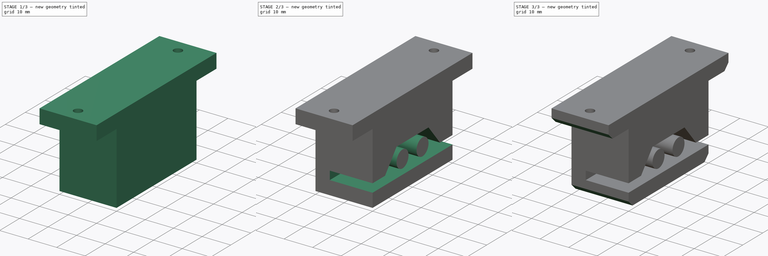
[diagram: build sequence overview — one tinted view per stage of 3, left to right]
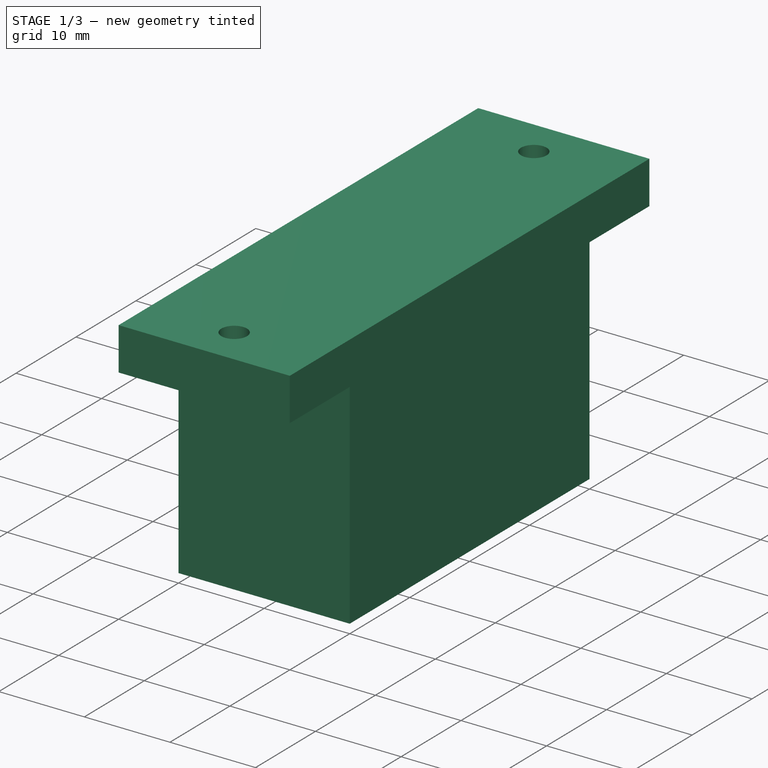
[diagram: stage 1 of 3 — iso view after this stage's code; geometry added in this stage tinted green]
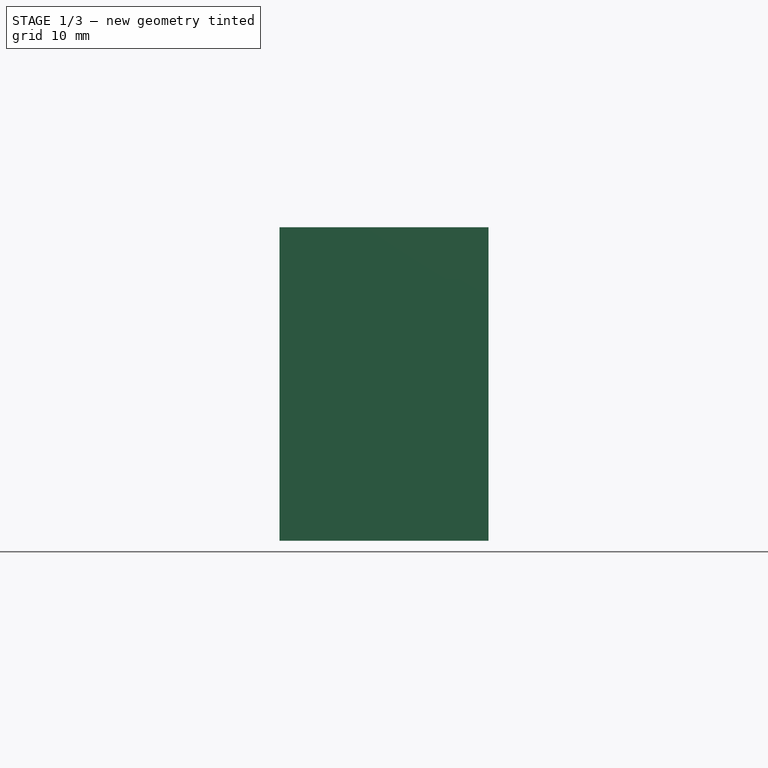
[diagram: stage 1 of 3 — front view after this stage's code; geometry added in this stage tinted green]
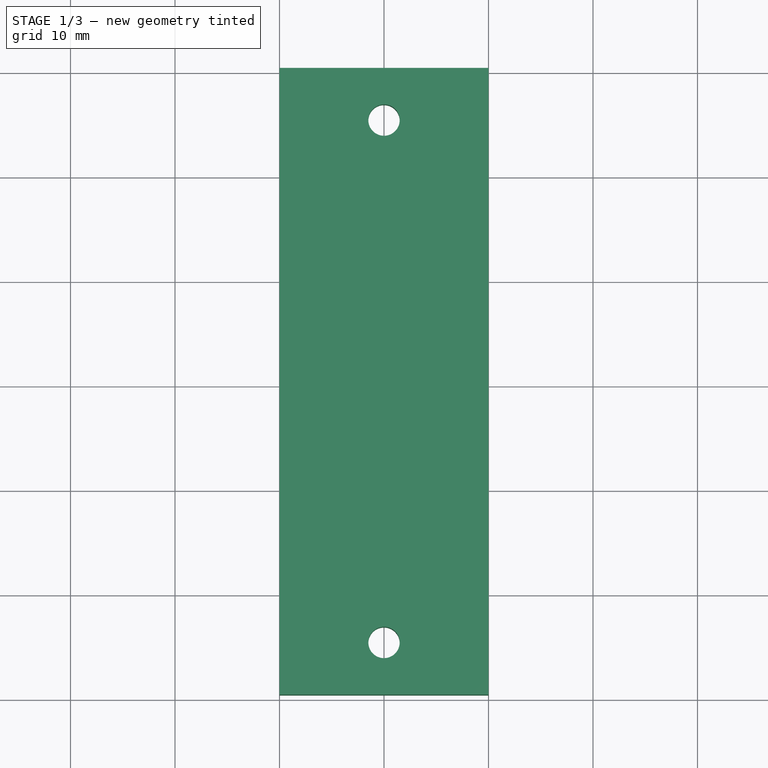
[diagram: stage 1 of 3 — top view after this stage's code; geometry added in this stage tinted green]
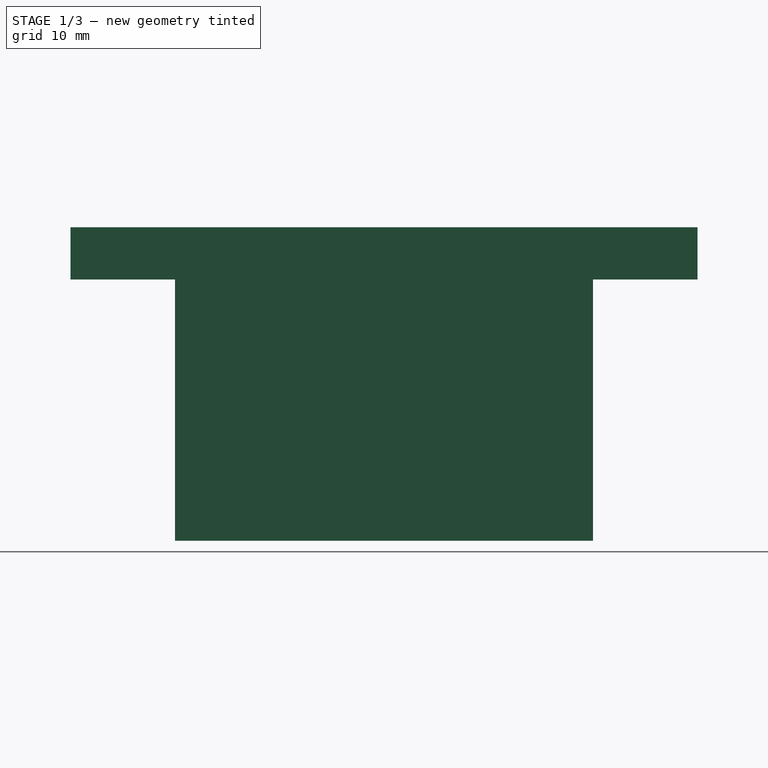
[diagram: stage 1 of 3 — right view after this stage's code; geometry added in this stage tinted green]
FCSTD DOCUMENT  (FreeCAD 0.18R14555 (Git shallow))
Label: belt-hook
License: All rights reserved
LicenseURL: http://en.wikipedia.org/wiki/All_rights_reserved
objects: Sketcher::SketchObject×3, PartDesign::Pocket×2, PartDesign::Chamfer×2, PartDesign::Pad×1, PartDesign::Body×1
note: 12 computed .brp shape members not serialized (recipe doc carries the construction recipe); baked Part::Feature solids carry a one-line shape summary decoded from their .brp

FEATURE [Sketcher::SketchObject] Sketch
  MapMode = 5
  Support = -> [XY_Plane]
  sketch-geometry (10):
    g0: LineSegment StartX=0 StartY=0 StartZ=0 EndX=20 EndY=0 EndZ=0
    g1: LineSegment StartX=20 StartY=0 StartZ=0 EndX=20 EndY=60 EndZ=0
    g2: LineSegment StartX=20 StartY=60 StartZ=0 EndX=0 EndY=60 EndZ=0
    g3: LineSegment StartX=0 StartY=60 StartZ=0 EndX=0 EndY=0 EndZ=0
    g4: Circle CenterX=10 CenterY=55 CenterZ=0 NormalX=0 NormalY=0 NormalZ=1 AngleXU=0 Radius=1.5
    g5: Circle CenterX=10 CenterY=5 CenterZ=0 NormalX=0 NormalY=0 NormalZ=1 AngleXU=0 Radius=1.5
    g6: LineSegment [constr] StartX=0 StartY=0 StartZ=0 EndX=10 EndY=5 EndZ=0
    g7: LineSegment [constr] StartX=10 StartY=5 StartZ=0 EndX=20 EndY=0 EndZ=0
    g8: LineSegment [constr] StartX=10 StartY=5 StartZ=0 EndX=10 EndY=55 EndZ=0
    g9: LineSegment [constr] StartX=10 StartY=55 StartZ=0 EndX=0 EndY=60 EndZ=0
  constraints (25):
    c: Coincident(g0,g1)
    c: Coincident(g1,g2)
    c: Coincident(g2,g3)
    c: Coincident(g3,g0)
    c: Horizontal(g0)
    c: Horizontal(g2)
    c: Vertical(g1)
    c: Vertical(g3)
    c: Coincident(g0,g-1)
    c: DistanceX(g2,g2) = 20
    c: Coincident(g6,g0)
    c: Coincident(g6,g5)
    c: Coincident(g7,g5)
    c: Coincident(g7,g0)
    c: Coincident(g8,g5)
    c: Coincident(g8,g4)
    c: Vertical(g8)
    c: Coincident(g9,g4)
    c: Coincident(g9,g2)
    c: Equal(g9,g6)
    c: Equal(g6,g7)
    c: Equal(g5,g4)
    c: Radius(g4) = 1.5
    c: DistanceY(g8,g8) = 50
    c: DistanceY(g4,g2) = 5
FEATURE [PartDesign::Pad] Pad
  Length = 30
  Length2 = 100
  Profile = -> Sketch
  Type = 0
FEATURE [Sketcher::SketchObject] Sketch001
  ExternalGeometry = -> [Pad]
  MapMode = 5
  Placement = pos=(0,0,0) rot=(1,0,0;3.14159rad)
  Support = -> [Pad]
  sketch-geometry (8):
    g0: LineSegment StartX=0 StartY=-10 StartZ=0 EndX=20 EndY=-10 EndZ=0
    g1: LineSegment StartX=20 StartY=-10 StartZ=0 EndX=20 EndY=0 EndZ=0
    g2: LineSegment StartX=20 StartY=0 StartZ=0 EndX=0 EndY=0 EndZ=0
    g3: LineSegment StartX=0 StartY=0 StartZ=0 EndX=0 EndY=-10 EndZ=0
    g4: LineSegment StartX=0 StartY=-50 StartZ=0 EndX=20 EndY=-50 EndZ=0
    g5: LineSegment StartX=20 StartY=-50 StartZ=0 EndX=20 EndY=-60 EndZ=0
    g6: LineSegment StartX=20 StartY=-60 StartZ=0 EndX=0 EndY=-60 EndZ=0
    g7: LineSegment StartX=0 StartY=-60 StartZ=0 EndX=0 EndY=-50 EndZ=0
  constraints (20):
    c: Coincident(g0,g1)
    c: Coincident(g1,g2)
    c: Coincident(g2,g3)
    c: Coincident(g3,g0)
    c: Horizontal(g0)
    c: Vertical(g1)
    c: Vertical(g3)
    c: Coincident(g4,g5)
    c: Coincident(g5,g6)
    c: Coincident(g6,g7)
    c: Coincident(g7,g4)
    c: Horizontal(g4)
    c: Vertical(g5)
    c: Vertical(g7)
    c: Equal(g7,g3)
    c: Coincident(g6,g-4)
    c: Coincident(g5,g-3)
    c: Coincident(g2,g-1)
    c: Coincident(g1,g-3)
    c: DistanceY(g0,g-5) = 5
FEATURE [PartDesign::Pocket] Pocket
  BaseFeature = -> Pad
  Length = 25
  Length2 = 100
  Profile = -> Sketch001
  Type = 0
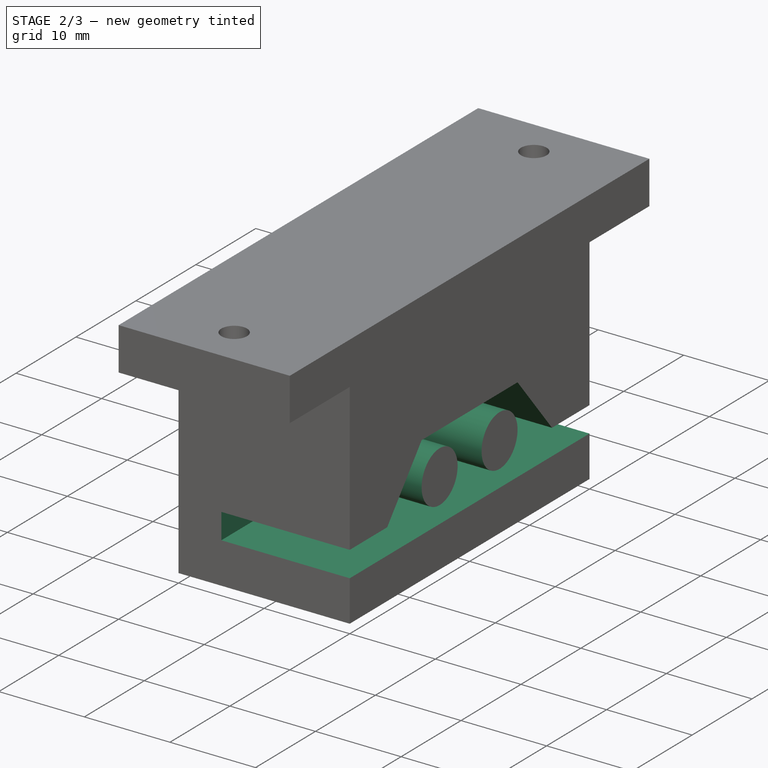
[diagram: stage 2 of 3 — iso view after this stage's code; geometry added in this stage tinted green]
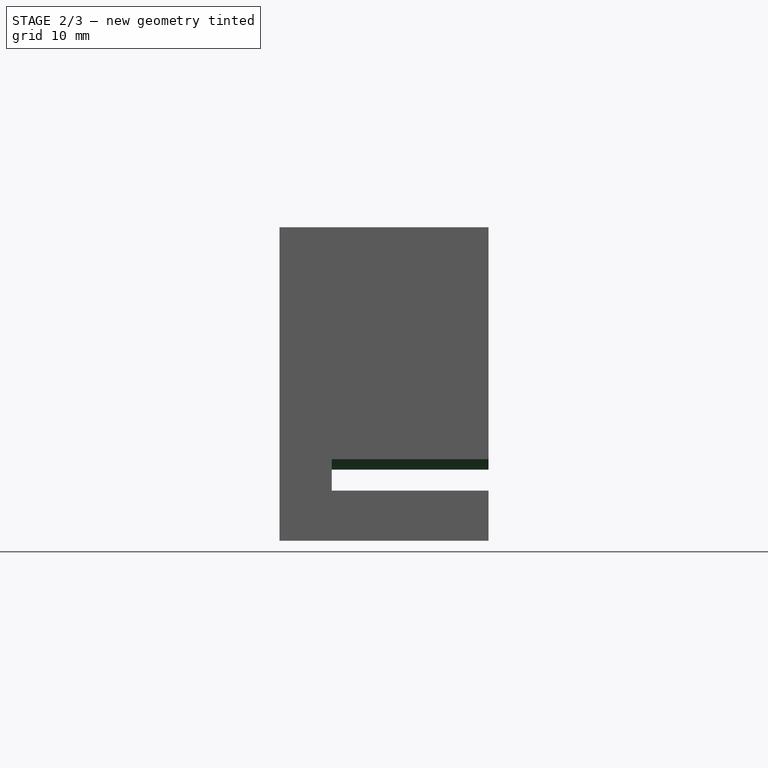
[diagram: stage 2 of 3 — front view after this stage's code; geometry added in this stage tinted green]
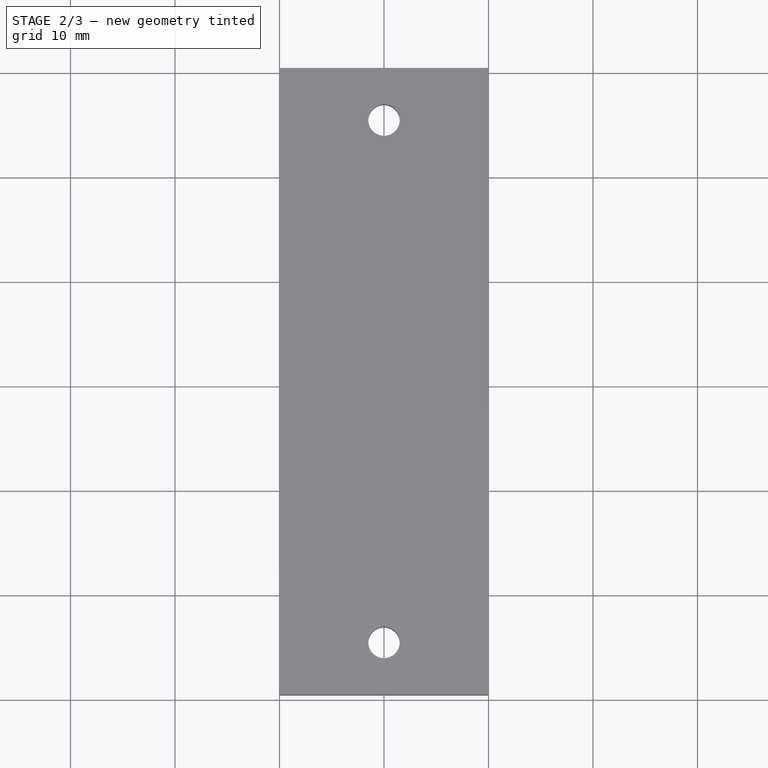
[diagram: stage 2 of 3 — top view after this stage's code; geometry added in this stage tinted green]
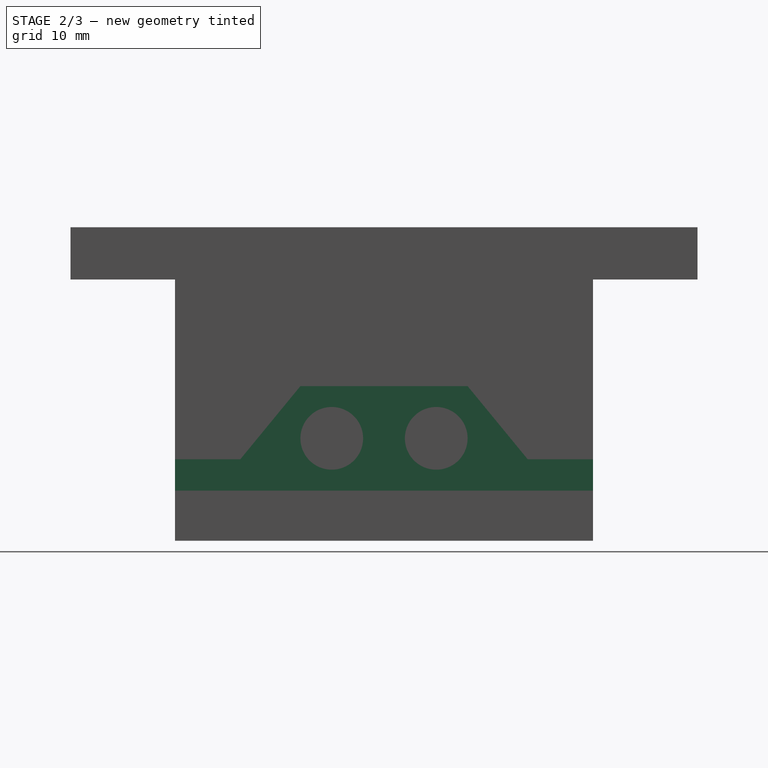
[diagram: stage 2 of 3 — right view after this stage's code; geometry added in this stage tinted green]
FEATURE [Sketcher::SketchObject] Sketch002
  ExternalGeometry = -> [Pocket]
  MapMode = 5
  Placement = pos=(20,0,0) rot=(0.57735,0.57735,0.57735;2.0944rad)
  Support = -> [Pocket]
  sketch-geometry (14):
    g0: LineSegment StartX=10 StartY=7.8 StartZ=0 EndX=10 EndY=4.8 EndZ=0
    g1: LineSegment StartX=10 StartY=4.8 StartZ=0 EndX=50 EndY=4.8 EndZ=0
    g2: LineSegment StartX=50 StartY=4.8 StartZ=0 EndX=50 EndY=7.8 EndZ=0
    g3: LineSegment StartX=50 StartY=7.8 StartZ=0 EndX=43.75 EndY=7.8 EndZ=0
    g4: LineSegment StartX=43.75 StartY=7.8 StartZ=0 EndX=38 EndY=14.8 EndZ=0
    g5: LineSegment StartX=38 StartY=14.8 StartZ=0 EndX=22 EndY=14.8 EndZ=0
    g6: LineSegment StartX=22 StartY=14.8 StartZ=0 EndX=16.25 EndY=7.8 EndZ=0
    g7: LineSegment StartX=16.25 StartY=7.8 StartZ=0 EndX=10 EndY=7.8 EndZ=0
    g8: LineSegment [constr] StartX=16.25 StartY=7.8 StartZ=0 EndX=43.75 EndY=7.8 EndZ=0
    g9: Circle CenterX=25 CenterY=9.8 CenterZ=0 NormalX=0 NormalY=0 NormalZ=1 AngleXU=0 Radius=3
    g10: Circle CenterX=35 CenterY=9.8 CenterZ=0 NormalX=0 NormalY=0 NormalZ=1 AngleXU=0 Radius=3
    g11: LineSegment [constr] StartX=25 StartY=9.8 StartZ=0 EndX=35 EndY=9.8 EndZ=0
    g12: LineSegment [constr] StartX=43.75 StartY=7.8 StartZ=0 EndX=35 EndY=9.8 EndZ=0
    g13: LineSegment [constr] StartX=25 StartY=9.8 StartZ=0 EndX=16.25 EndY=7.8 EndZ=0
  constraints (38):
    c: Vertical(g0)
    c: Coincident(g0,g1)
    c: Horizontal(g1)
    c: Coincident(g1,g2)
    c: Vertical(g2)
    c: Coincident(g2,g3)
    c: Horizontal(g3)
    c: Coincident(g3,g4)
    c: Coincident(g4,g5)
    c: Horizontal(g5)
    c: Coincident(g5,g6)
    c: Coincident(g6,g7)
    c: Coincident(g7,g0)
    c: Horizontal(g7)
    c: Equal(g6,g4)
    c: Coincident(g8,g6)
    c: Coincident(g8,g3)
    c: Horizontal(g8)
    c: Equal(g7,g3)
    c: DistanceY(g-3,g0) = 4.8
    c: DistanceY(g0,g0) = 3
    c: PointOnObject(g0,g-3)
    c: PointOnObject(g1,g-4)
    c: DistanceX(g7,g7) = 6.25
    c: Coincident(g11,g9)
    c: Coincident(g11,g10)
    c: Horizontal(g11)
    c: Coincident(g12,g3)
    c: Coincident(g12,g10)
    c: Coincident(g13,g9)
    c: Coincident(g13,g6)
    c: Equal(g13,g12)
    c: Equal(g10,g9)
    c: Radius(g9) = 3
    c: DistanceY(g0,g9) = 5
    c: DistanceX(g9,g10) = 10
    c: DistanceX(g5,g9) = 3
    c: DistanceY(g9,g5) = 5
FEATURE [PartDesign::Pocket] Pocket001
  BaseFeature = -> Pocket
  Length = 15
  Length2 = 100
  Profile = -> Sketch002
  Type = 0
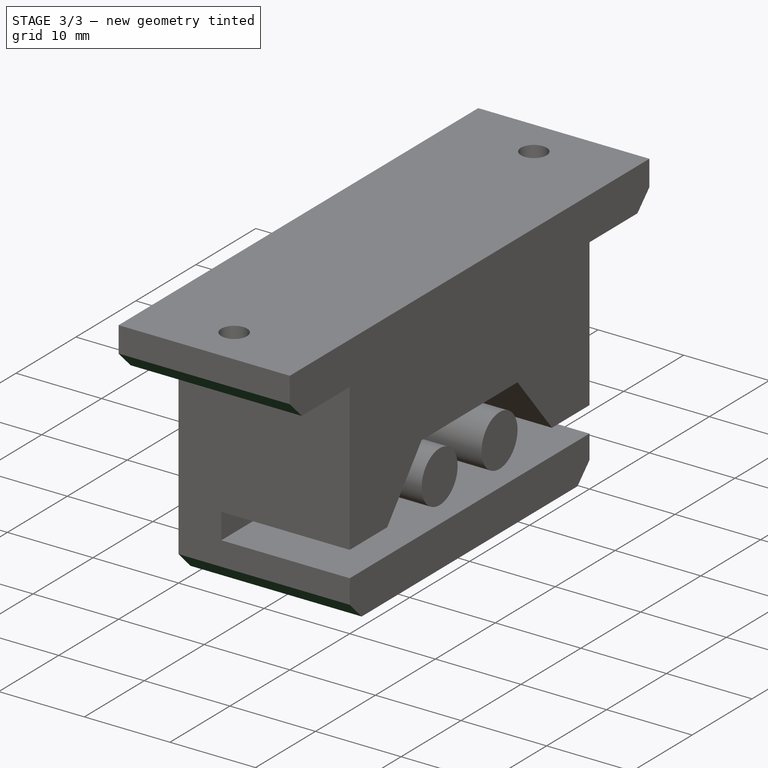
[diagram: stage 3 of 3 — iso view after this stage's code; geometry added in this stage tinted green]
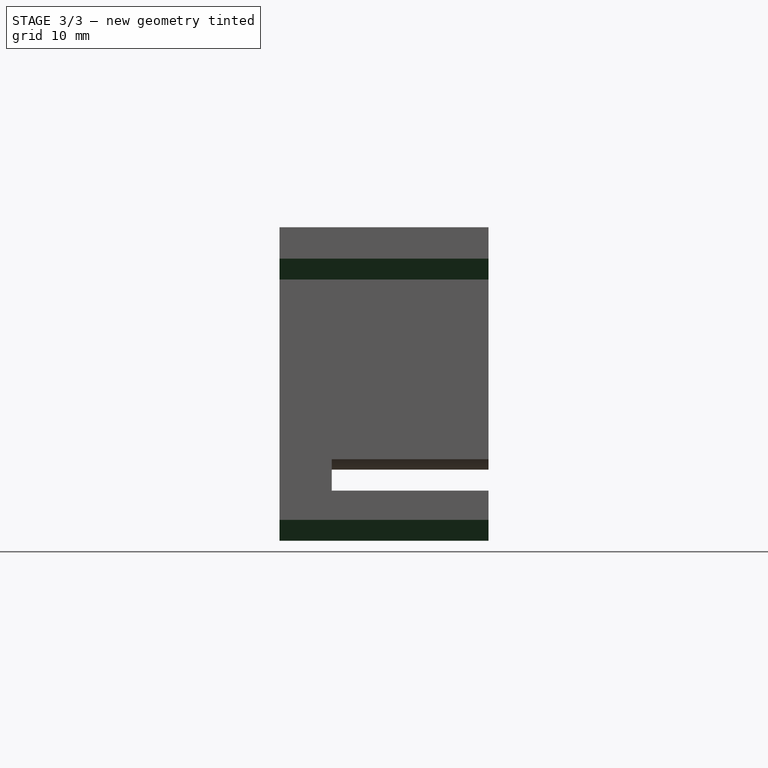
[diagram: stage 3 of 3 — front view after this stage's code; geometry added in this stage tinted green]
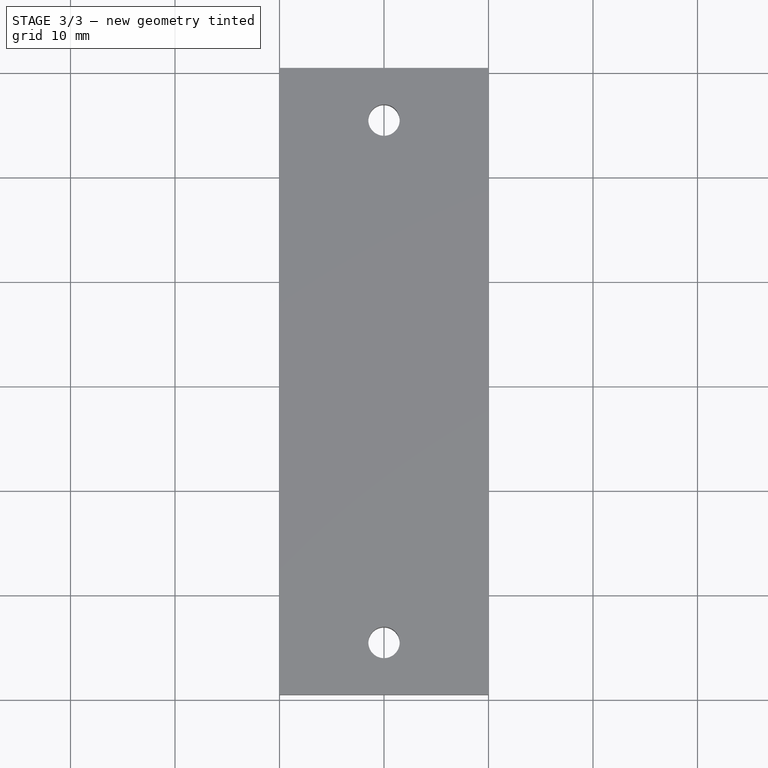
[diagram: stage 3 of 3 — top view after this stage's code; geometry added in this stage tinted green]
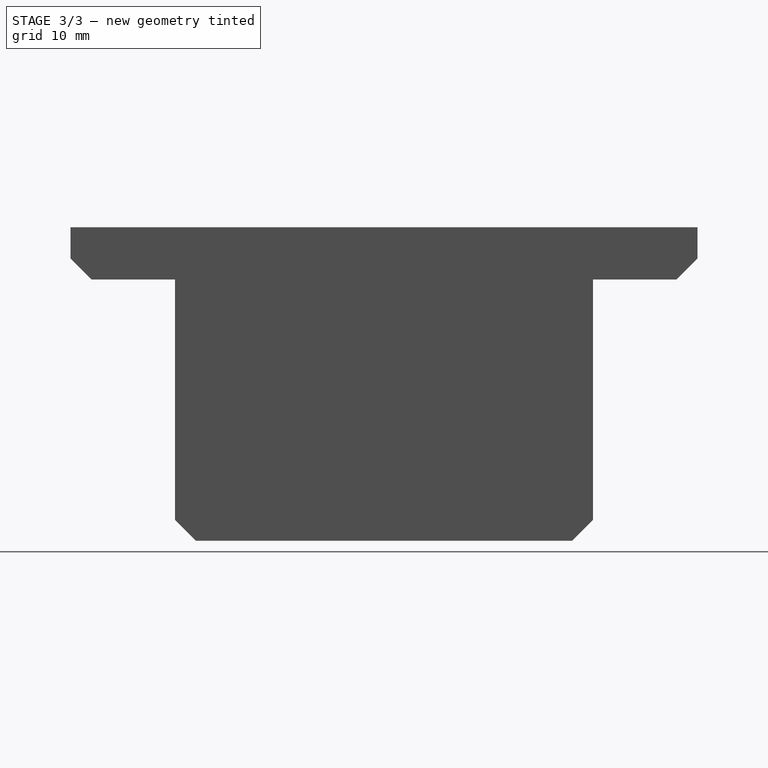
[diagram: stage 3 of 3 — right view after this stage's code; geometry added in this stage tinted green]
FEATURE [PartDesign::Chamfer] Chamfer
  Base = -> Pocket001 [Edge1,Edge49]
  BaseFeature = -> Pocket001
  Size = 2
FEATURE [PartDesign::Chamfer] Chamfer001
  Base = -> Chamfer [Edge52,Edge35]
  BaseFeature = -> Chamfer
  Size = 2
FEATURE [PartDesign::Body] Body
  Group = -> [Sketch,Pad,Sketch001,Pocket,Sketch002,Pocket001,Chamfer,Chamfer001]
  Origin = -> Origin
  Tip = -> Chamfer001
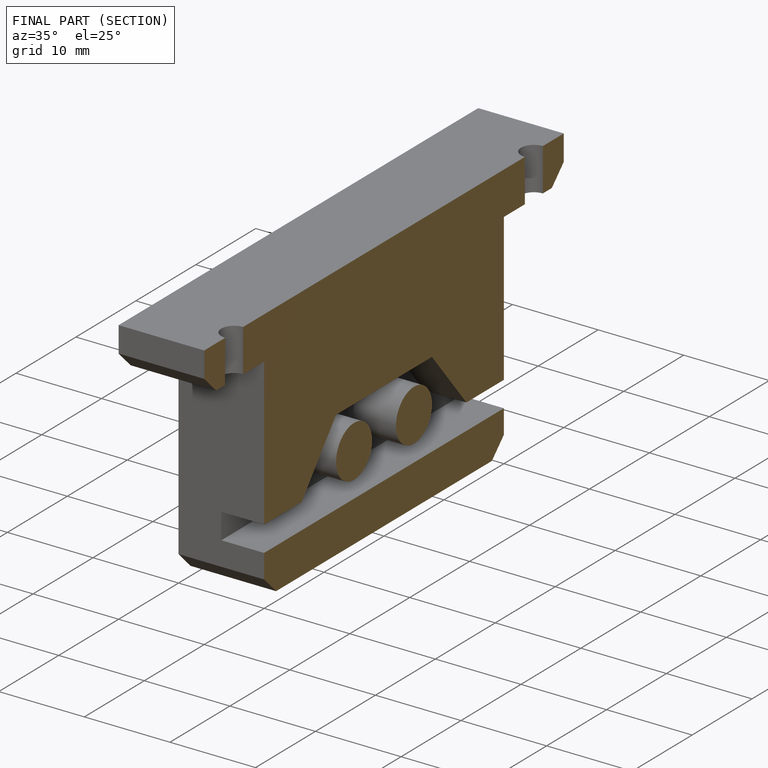
[diagram: finished part — half-section view (interior)]
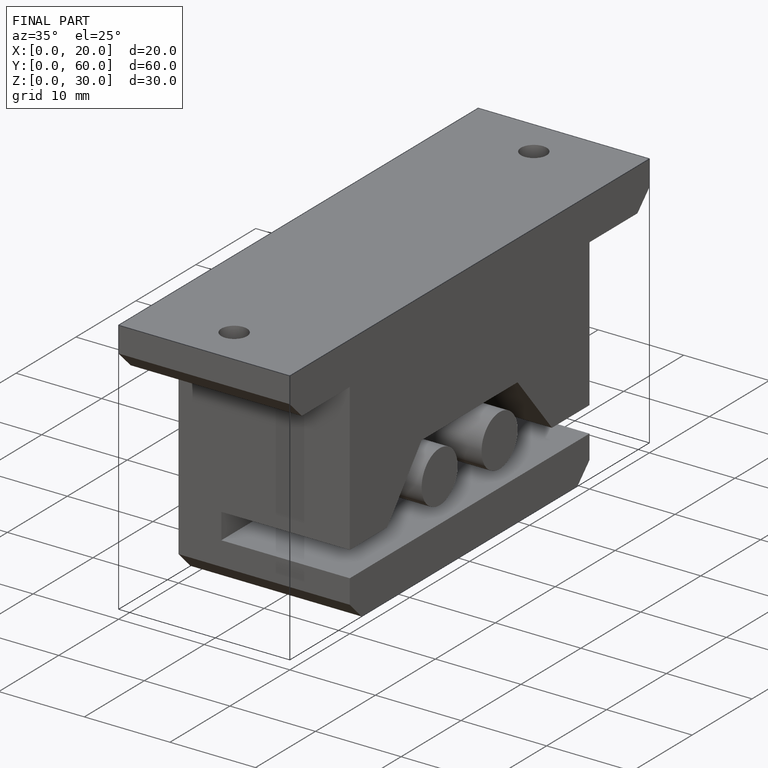
[diagram: finished part — iso view with bounding-box wireframe]
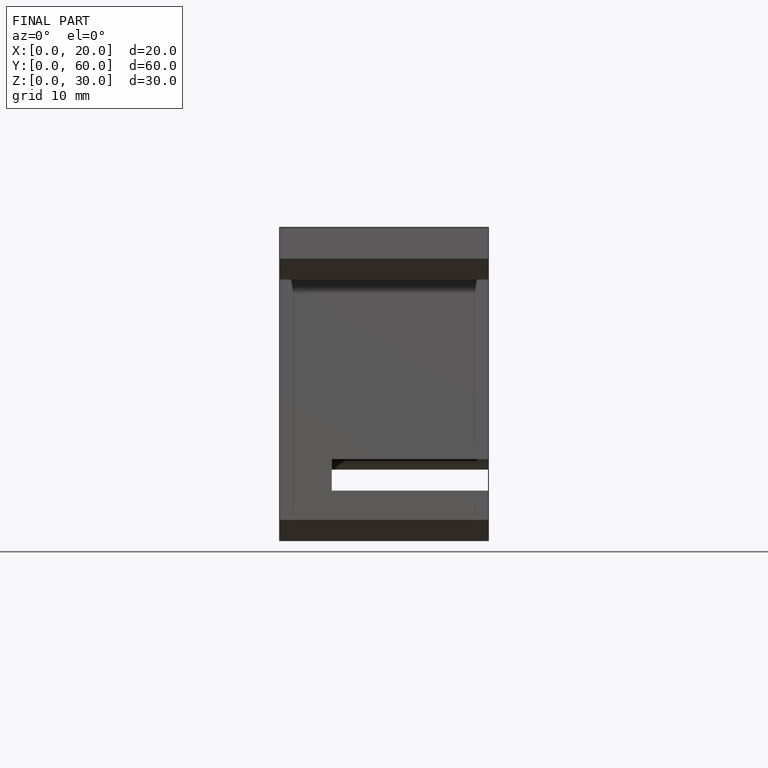
[diagram: finished part — front view with bounding-box wireframe]
